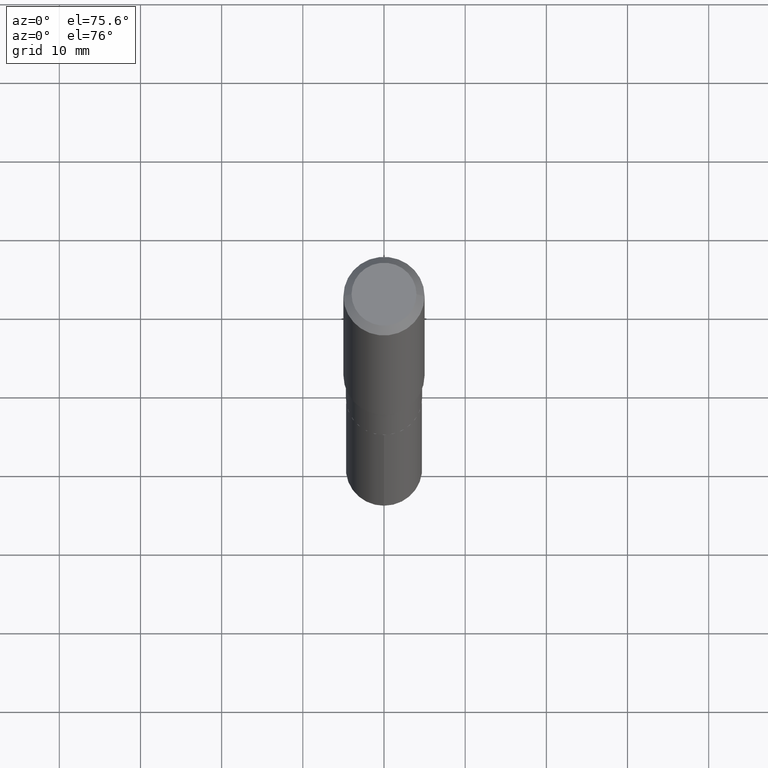
[diagram: clean part render]
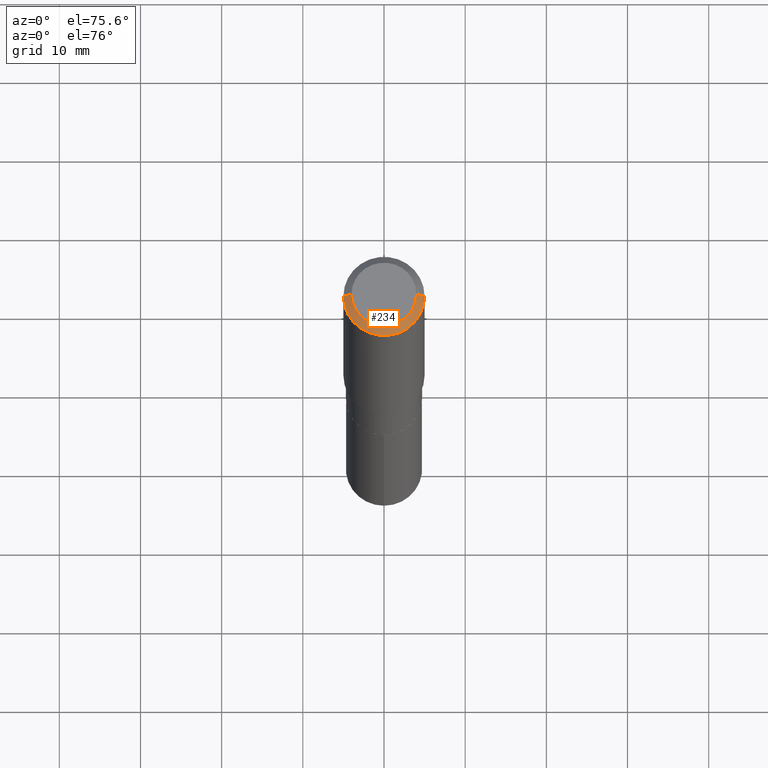
[diagram: same view with one face highlighted and labeled with its STEP entity id]
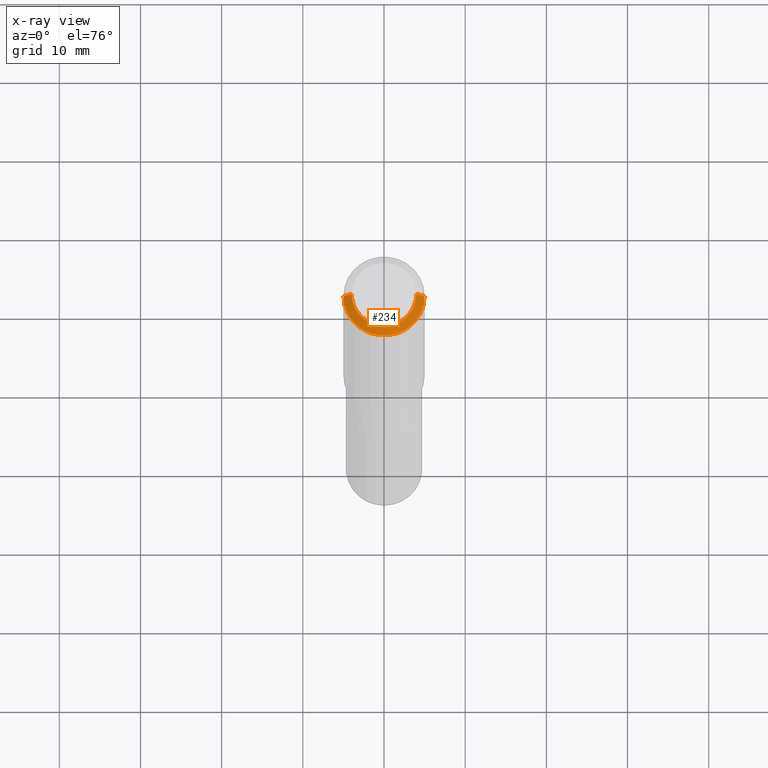
[diagram: x-ray of the same camera — body ghosted, the highlighted face saturated]
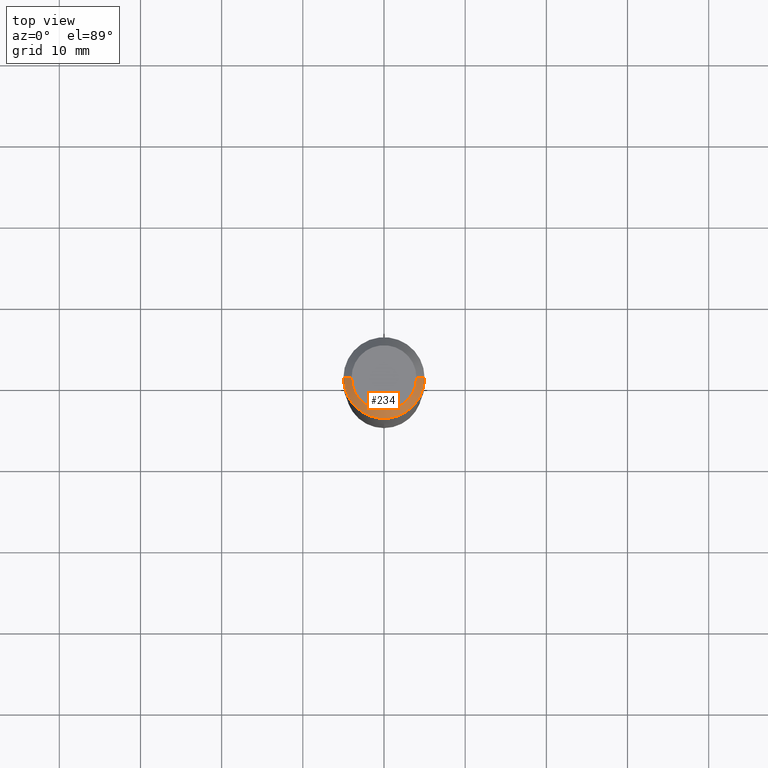
[diagram: same view with one face highlighted and labeled with its STEP entity id]
A machine part, auxiliary view. The second image highlights one B-rep face of the part: STEP entity #234.
The next image is the same camera in x-ray: the body ghosted, the highlighted face saturated — about 0% of this face is hidden behind the body in this view.
A second angle (top view) of the same face is appended — the face is thin or edge-on in the first view.
In plain terms, the highlighted conical surface has half-angle 45 deg.
Its self-contained STEP definition (entity closure, byte-faithful):
#6 = AXIS2_PLACEMENT_3D ( 'NONE', #104, #395, #252 ) ;
#46 = VECTOR ( 'NONE', #229, 39.37007874015748143 ) ;
#49 = CARTESIAN_POINT ( 'NONE',  ( 0.1968500000000000250, -1.512055823412797189E-15, -0.03937000000000029365 ) ) ;
#55 = CARTESIAN_POINT ( 'NONE',  ( -0.1574800000000000089, 1.168406772637159618E-15, 3.855188123707939751E-18 ) ) ;
#71 = VERTEX_POINT ( 'NONE', #49 ) ;
#81 = EDGE_CURVE ( 'NONE', #194, #71, #84, .T. ) ;
#84 = CIRCLE ( 'NONE', #152, 0.1968500000000000250 ) ;
#87 = CARTESIAN_POINT ( 'NONE',  ( 0.1968500000000000250, -1.487948651171581601E-15, -0.03937000000000029365 ) ) ;
#99 = ORIENTED_EDGE ( 'NONE', *, *, #81, .T. ) ;
#101 = EDGE_CURVE ( 'NONE', #210, #71, #261, .T. ) ;
#104 = CARTESIAN_POINT ( 'NONE',  ( -9.427742298522567634E-47, 1.346031739168368355E-32, 3.855188123715870730E-18 ) ) ;
#119 = ORIENTED_EDGE ( 'NONE', *, *, #134, .T. ) ;
#134 = EDGE_CURVE ( 'NONE', #246, #194, #269, .T. ) ;
#135 = FACE_OUTER_BOUND ( 'NONE', #352, .T. ) ;
#139 = AXIS2_PLACEMENT_3D ( 'NONE', #197, #202, #343 ) ;
#152 = AXIS2_PLACEMENT_3D ( 'NONE', #419, #339, #427 ) ;
#194 = VERTEX_POINT ( 'NONE', #456 ) ;
#197 = CARTESIAN_POINT ( 'NONE',  ( 9.627810689950954155E-31, -1.374596203102556547E-16, -0.03937000000000029365 ) ) ;
#202 = DIRECTION ( 'NONE',  ( 2.445468806185136597E-29, -3.491481338843145583E-15, -1.000000000000000000 ) ) ;
#210 = VERTEX_POINT ( 'NONE', #342 ) ;
#229 = DIRECTION ( 'NONE',  ( 0.7071067811865450192, -7.319954787623246579E-15, -0.7071067811865500152 ) ) ;
#234 = ADVANCED_FACE ( 'NONE', ( #135 ), #338, .T. ) ;
#244 = ORIENTED_EDGE ( 'NONE', *, *, #260, .F. ) ;
#246 = VERTEX_POINT ( 'NONE', #55 ) ;
#252 = DIRECTION ( 'NONE',  ( 1.000000000000000000, -6.982962677686265922E-15, 4.876223630392693006E-29 ) ) ;
#260 = EDGE_CURVE ( 'NONE', #246, #210, #450, .T. ) ;
#261 = LINE ( 'NONE', #87, #46 ) ;
#269 = LINE ( 'NONE', #368, #474 ) ;
#280 = DIRECTION ( 'NONE',  ( -0.7071067811865450192, 2.468850131082230634E-15, -0.7071067811865500152 ) ) ;
#338 = CONICAL_SURFACE ( 'NONE', #139, 0.1968500000000000250, 0.7853981633974447263 ) ;
#339 = DIRECTION ( 'NONE',  ( -2.445468806185136597E-29, 3.491481338843145583E-15, 1.000000000000000000 ) ) ;
#342 = CARTESIAN_POINT ( 'NONE',  ( 0.1574800000000000089, -1.284169937930321189E-15, 3.855188123724205385E-18 ) ) ;
#343 = DIRECTION ( 'NONE',  ( -1.000000000000000000, 6.982962677686265922E-15, 0.000000000000000000 ) ) ;
#347 = ORIENTED_EDGE ( 'NONE', *, *, #101, .F. ) ;
#352 = EDGE_LOOP ( 'NONE', ( #347, #244, #119, #99 ) ) ;
#368 = CARTESIAN_POINT ( 'NONE',  ( -0.1968500000000000250, 1.237136582792286225E-15, -0.03937000000000029365 ) ) ;
#395 = DIRECTION ( 'NONE',  ( -2.445468806185136597E-29, 3.491481338843145583E-15, 1.000000000000000000 ) ) ;
#419 = CARTESIAN_POINT ( 'NONE',  ( 9.627810689950954155E-31, -1.374596203102556547E-16, -0.03937000000000029365 ) ) ;
#427 = DIRECTION ( 'NONE',  ( 1.000000000000000000, -6.982962677686265922E-15, 0.000000000000000000 ) ) ;
#450 = CIRCLE ( 'NONE', #6, 0.1574800000000000089 ) ;
#456 = CARTESIAN_POINT ( 'NONE',  ( -0.1968500000000000250, -1.439120284647867629E-15, -0.03937000000000029365 ) ) ;
#474 = VECTOR ( 'NONE', #280, 39.37007874015748143 ) ;